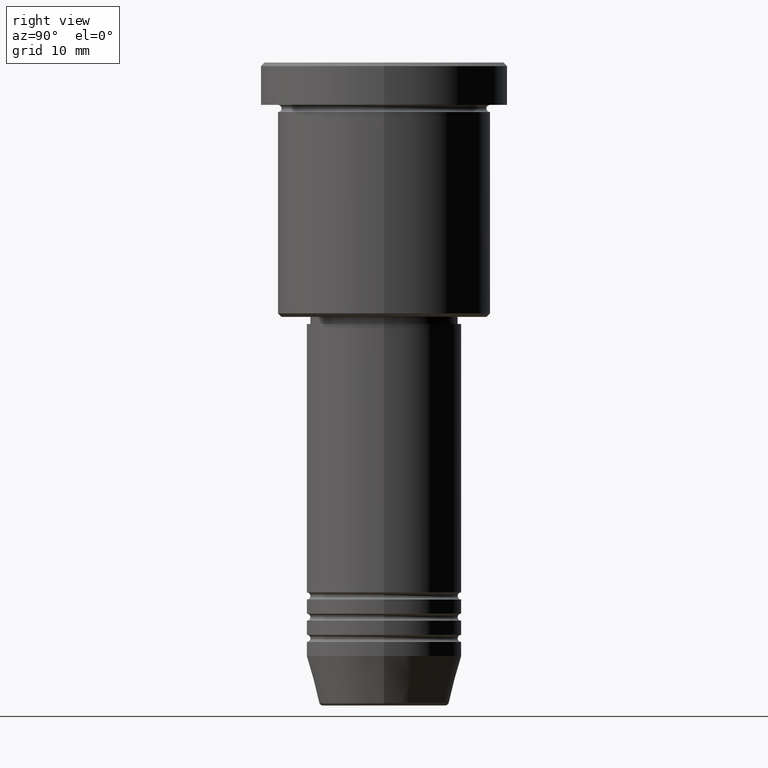
[diagram: clean part render]
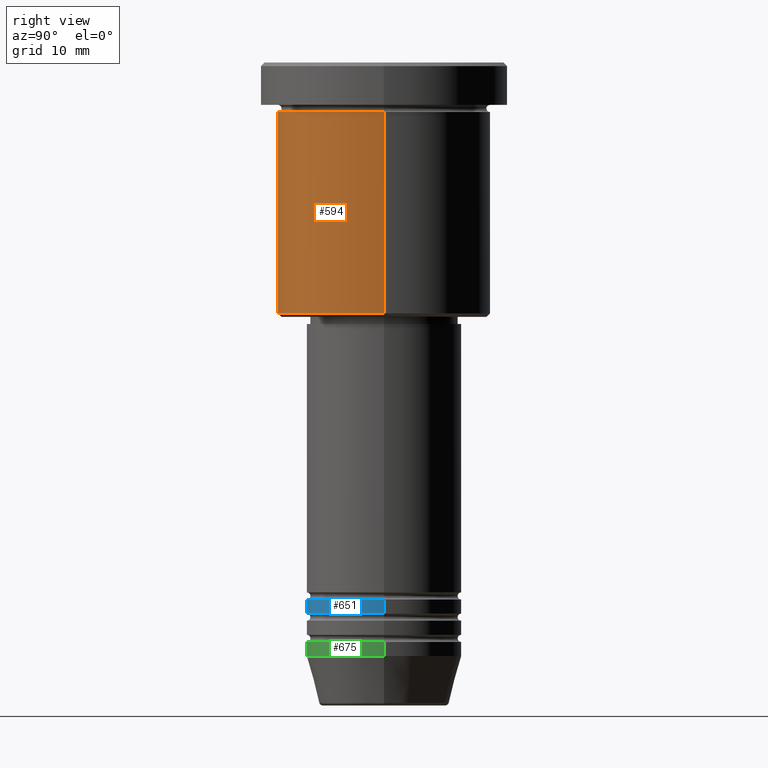
[diagram: same view with three faces highlighted in distinct colors, each labeled with its STEP entity id]
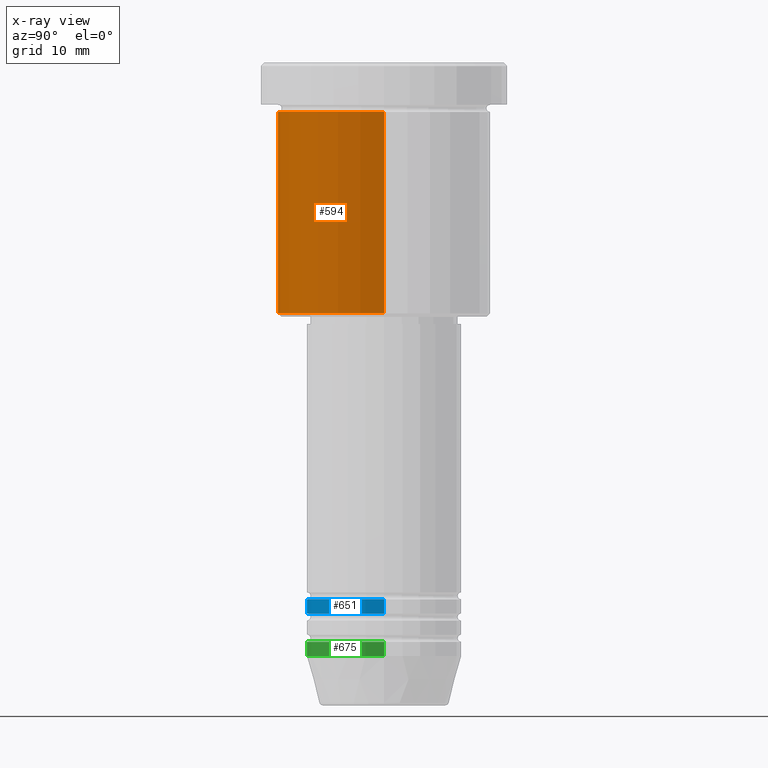
[diagram: x-ray of the same camera — body ghosted, the three highlighted faces saturated]
A machine part, right view with three faces highlighted in distinct colors.
The next image is the same camera in x-ray (body ghosted, the three faces saturated) — at least one of them is partly hidden behind the body in this view.
Their STEP definitions:

[orange] entity #594 — the highlighted cylindrical surface (partial cylindrical patch) has radius 15 mm, axis along (-0, -0, 1).
#3 = ORIENTED_EDGE ( 'NONE', *, *, #576, .T. ) ;
#48 = CARTESIAN_POINT ( 'NONE',  ( 0.000000000000000000, 0.000000000000000000, 0.000000000000000000 ) ) ;
#59 = VERTEX_POINT ( 'NONE', #326 ) ;
#89 = EDGE_CURVE ( 'NONE', #511, #591, #677, .T. ) ;
#100 = AXIS2_PLACEMENT_3D ( 'NONE', #236, #585, #1106 ) ;
#151 = LINE ( 'NONE', #889, #390 ) ;
#153 = ORIENTED_EDGE ( 'NONE', *, *, #995, .F. ) ;
#236 = CARTESIAN_POINT ( 'NONE',  ( 0.000000000000000000, 0.000000000000000000, -6.999999999999995559 ) ) ;
#242 = FACE_OUTER_BOUND ( 'NONE', #1086, .T. ) ;
#276 = EDGE_CURVE ( 'NONE', #59, #498, #447, .T. ) ;
#324 = DIRECTION ( 'NONE',  ( -0.000000000000000000, -0.000000000000000000, 1.000000000000000000 ) ) ;
#326 = CARTESIAN_POINT ( 'NONE',  ( -15.00000000000000000, 1.836970198721029589E-15, -35.49999999999999289 ) ) ;
#367 = DIRECTION ( 'NONE',  ( -1.000000000000000000, 0.000000000000000000, 0.000000000000000000 ) ) ;
#390 = VECTOR ( 'NONE', #324, 1000.000000000000000 ) ;
#394 = DIRECTION ( 'NONE',  ( -0.000000000000000000, -0.000000000000000000, 1.000000000000000000 ) ) ;
#441 = CARTESIAN_POINT ( 'NONE',  ( -15.00000000000000000, 1.836970198721029589E-15, 0.000000000000000000 ) ) ;
#447 = CIRCLE ( 'NONE', #481, 15.00000000000000000 ) ;
#457 = CARTESIAN_POINT ( 'NONE',  ( 0.000000000000000000, 0.000000000000000000, -35.49999999999999289 ) ) ;
#481 = AXIS2_PLACEMENT_3D ( 'NONE', #457, #645, #367 ) ;
#486 = ORIENTED_EDGE ( 'NONE', *, *, #276, .T. ) ;
#498 = VERTEX_POINT ( 'NONE', #978 ) ;
#511 = VERTEX_POINT ( 'NONE', #678 ) ;
#576 = EDGE_CURVE ( 'NONE', #498, #591, #151, .T. ) ;
#585 = DIRECTION ( 'NONE',  ( -0.000000000000000000, -0.000000000000000000, 1.000000000000000000 ) ) ;
#590 = CYLINDRICAL_SURFACE ( 'NONE', #1174, 15.00000000000000000 ) ;
#591 = VERTEX_POINT ( 'NONE', #756 ) ;
#594 = ADVANCED_FACE ( 'NONE', ( #242 ), #590, .T. ) ;
#613 = LINE ( 'NONE', #441, #781 ) ;
#645 = DIRECTION ( 'NONE',  ( -0.000000000000000000, -0.000000000000000000, 1.000000000000000000 ) ) ;
#677 = CIRCLE ( 'NONE', #100, 15.00000000000000000 ) ;
#678 = CARTESIAN_POINT ( 'NONE',  ( -15.00000000000000000, 1.836970198721029589E-15, -6.999999999999995559 ) ) ;
#756 = CARTESIAN_POINT ( 'NONE',  ( 15.00000000000000000, 0.000000000000000000, -6.999999999999995559 ) ) ;
#781 = VECTOR ( 'NONE', #827, 1000.000000000000000 ) ;
#827 = DIRECTION ( 'NONE',  ( -0.000000000000000000, -0.000000000000000000, 1.000000000000000000 ) ) ;
#889 = CARTESIAN_POINT ( 'NONE',  ( 15.00000000000000000, 0.000000000000000000, 0.000000000000000000 ) ) ;
#978 = CARTESIAN_POINT ( 'NONE',  ( 15.00000000000000000, 0.000000000000000000, -35.49999999999999289 ) ) ;
#995 = EDGE_CURVE ( 'NONE', #59, #511, #613, .T. ) ;
#1002 = ORIENTED_EDGE ( 'NONE', *, *, #89, .F. ) ;
#1086 = EDGE_LOOP ( 'NONE', ( #153, #486, #3, #1002 ) ) ;
#1106 = DIRECTION ( 'NONE',  ( 1.000000000000000000, 0.000000000000000000, 0.000000000000000000 ) ) ;
#1136 = DIRECTION ( 'NONE',  ( 1.000000000000000000, 0.000000000000000000, 0.000000000000000000 ) ) ;
#1174 = AXIS2_PLACEMENT_3D ( 'NONE', #48, #394, #1136 ) ;

[blue] entity #651 — the highlighted cylindrical surface (partial cylindrical patch) has radius 11 mm, axis along (-0, -0, 1).
#7 = LINE ( 'NONE', #723, #848 ) ;
#88 = EDGE_CURVE ( 'NONE', #364, #474, #505, .T. ) ;
#118 = AXIS2_PLACEMENT_3D ( 'NONE', #653, #332, #964 ) ;
#192 = EDGE_CURVE ( 'NONE', #578, #474, #274, .T. ) ;
#274 = LINE ( 'NONE', #630, #1018 ) ;
#317 = DIRECTION ( 'NONE',  ( -0.000000000000000000, -0.000000000000000000, 1.000000000000000000 ) ) ;
#325 = ORIENTED_EDGE ( 'NONE', *, *, #88, .F. ) ;
#329 = CARTESIAN_POINT ( 'NONE',  ( -11.00000000000000000, 1.347111479062088405E-15, -77.99999999999997158 ) ) ;
#332 = DIRECTION ( 'NONE',  ( -0.000000000000000000, -0.000000000000000000, 1.000000000000000000 ) ) ;
#342 = CYLINDRICAL_SURFACE ( 'NONE', #623, 11.00000000000000000 ) ;
#351 = DIRECTION ( 'NONE',  ( 1.000000000000000000, 0.000000000000000000, 0.000000000000000000 ) ) ;
#364 = VERTEX_POINT ( 'NONE', #470 ) ;
#425 = AXIS2_PLACEMENT_3D ( 'NONE', #773, #317, #681 ) ;
#470 = CARTESIAN_POINT ( 'NONE',  ( -11.00000000000000000, 1.347111479062088405E-15, -75.99999999999997158 ) ) ;
#474 = VERTEX_POINT ( 'NONE', #884 ) ;
#505 = CIRCLE ( 'NONE', #425, 11.00000000000000000 ) ;
#578 = VERTEX_POINT ( 'NONE', #688 ) ;
#608 = CARTESIAN_POINT ( 'NONE',  ( 0.000000000000000000, 0.000000000000000000, 0.000000000000000000 ) ) ;
#623 = AXIS2_PLACEMENT_3D ( 'NONE', #608, #1075, #351 ) ;
#627 = VERTEX_POINT ( 'NONE', #329 ) ;
#630 = CARTESIAN_POINT ( 'NONE',  ( 11.00000000000000000, 0.000000000000000000, 0.000000000000000000 ) ) ;
#651 = ADVANCED_FACE ( 'NONE', ( #1096 ), #342, .T. ) ;
#653 = CARTESIAN_POINT ( 'NONE',  ( 0.000000000000000000, 0.000000000000000000, -77.99999999999997158 ) ) ;
#681 = DIRECTION ( 'NONE',  ( 1.000000000000000000, 0.000000000000000000, 0.000000000000000000 ) ) ;
#688 = CARTESIAN_POINT ( 'NONE',  ( 11.00000000000000000, 0.000000000000000000, -77.99999999999997158 ) ) ;
#711 = EDGE_CURVE ( 'NONE', #627, #364, #7, .T. ) ;
#723 = CARTESIAN_POINT ( 'NONE',  ( -11.00000000000000000, 1.347111479062088405E-15, 0.000000000000000000 ) ) ;
#773 = CARTESIAN_POINT ( 'NONE',  ( 0.000000000000000000, 0.000000000000000000, -75.99999999999997158 ) ) ;
#848 = VECTOR ( 'NONE', #1104, 1000.000000000000000 ) ;
#884 = CARTESIAN_POINT ( 'NONE',  ( 11.00000000000000000, 0.000000000000000000, -75.99999999999997158 ) ) ;
#937 = EDGE_CURVE ( 'NONE', #627, #578, #1081, .T. ) ;
#964 = DIRECTION ( 'NONE',  ( 1.000000000000000000, 0.000000000000000000, 0.000000000000000000 ) ) ;
#1012 = DIRECTION ( 'NONE',  ( -0.000000000000000000, -0.000000000000000000, 1.000000000000000000 ) ) ;
#1018 = VECTOR ( 'NONE', #1012, 1000.000000000000000 ) ;
#1062 = ORIENTED_EDGE ( 'NONE', *, *, #711, .F. ) ;
#1075 = DIRECTION ( 'NONE',  ( -0.000000000000000000, -0.000000000000000000, 1.000000000000000000 ) ) ;
#1081 = CIRCLE ( 'NONE', #118, 11.00000000000000000 ) ;
#1089 = EDGE_LOOP ( 'NONE', ( #1062, #1161, #1126, #325 ) ) ;
#1096 = FACE_OUTER_BOUND ( 'NONE', #1089, .T. ) ;
#1104 = DIRECTION ( 'NONE',  ( -0.000000000000000000, -0.000000000000000000, 1.000000000000000000 ) ) ;
#1126 = ORIENTED_EDGE ( 'NONE', *, *, #192, .T. ) ;
#1161 = ORIENTED_EDGE ( 'NONE', *, *, #937, .T. ) ;

[green] entity #675 — the highlighted cylindrical surface (partial cylindrical patch) has radius 11 mm, axis along (-0, -0, 1).
#1 = DIRECTION ( 'NONE',  ( 1.000000000000000000, 0.000000000000000000, 0.000000000000000000 ) ) ;
#22 = EDGE_CURVE ( 'NONE', #618, #920, #44, .T. ) ;
#44 = CIRCLE ( 'NONE', #297, 11.00000000000000000 ) ;
#52 = ORIENTED_EDGE ( 'NONE', *, *, #493, .T. ) ;
#90 = CYLINDRICAL_SURFACE ( 'NONE', #1056, 11.00000000000000000 ) ;
#95 = CARTESIAN_POINT ( 'NONE',  ( 0.000000000000000000, 0.000000000000000000, 0.000000000000000000 ) ) ;
#119 = EDGE_CURVE ( 'NONE', #502, #398, #245, .T. ) ;
#163 = FACE_OUTER_BOUND ( 'NONE', #339, .T. ) ;
#184 = ORIENTED_EDGE ( 'NONE', *, *, #22, .T. ) ;
#191 = CARTESIAN_POINT ( 'NONE',  ( 0.000000000000000000, 0.000000000000000000, -81.99999999999998579 ) ) ;
#245 = CIRCLE ( 'NONE', #573, 11.00000000000000000 ) ;
#278 = DIRECTION ( 'NONE',  ( -0.000000000000000000, -0.000000000000000000, 1.000000000000000000 ) ) ;
#283 = LINE ( 'NONE', #635, #868 ) ;
#297 = AXIS2_PLACEMENT_3D ( 'NONE', #305, #1067, #892 ) ;
#305 = CARTESIAN_POINT ( 'NONE',  ( 0.000000000000000000, 0.000000000000000000, -83.99999999999998579 ) ) ;
#312 = ORIENTED_EDGE ( 'NONE', *, *, #421, .F. ) ;
#339 = EDGE_LOOP ( 'NONE', ( #312, #184, #52, #1168 ) ) ;
#398 = VERTEX_POINT ( 'NONE', #542 ) ;
#421 = EDGE_CURVE ( 'NONE', #618, #502, #283, .T. ) ;
#493 = EDGE_CURVE ( 'NONE', #920, #398, #495, .T. ) ;
#495 = LINE ( 'NONE', #776, #911 ) ;
#502 = VERTEX_POINT ( 'NONE', #684 ) ;
#542 = CARTESIAN_POINT ( 'NONE',  ( 11.00000000000000000, 0.000000000000000000, -81.99999999999998579 ) ) ;
#573 = AXIS2_PLACEMENT_3D ( 'NONE', #191, #800, #706 ) ;
#618 = VERTEX_POINT ( 'NONE', #997 ) ;
#635 = CARTESIAN_POINT ( 'NONE',  ( -11.00000000000000000, 1.347111479062088405E-15, 0.000000000000000000 ) ) ;
#675 = ADVANCED_FACE ( 'NONE', ( #163 ), #90, .T. ) ;
#684 = CARTESIAN_POINT ( 'NONE',  ( -11.00000000000000000, 1.347111479062088405E-15, -81.99999999999998579 ) ) ;
#706 = DIRECTION ( 'NONE',  ( 1.000000000000000000, 0.000000000000000000, 0.000000000000000000 ) ) ;
#776 = CARTESIAN_POINT ( 'NONE',  ( 11.00000000000000000, 0.000000000000000000, 0.000000000000000000 ) ) ;
#800 = DIRECTION ( 'NONE',  ( -0.000000000000000000, -0.000000000000000000, 1.000000000000000000 ) ) ;
#868 = VECTOR ( 'NONE', #278, 1000.000000000000000 ) ;
#892 = DIRECTION ( 'NONE',  ( 1.000000000000000000, 0.000000000000000000, 0.000000000000000000 ) ) ;
#911 = VECTOR ( 'NONE', #1158, 1000.000000000000000 ) ;
#920 = VERTEX_POINT ( 'NONE', #1171 ) ;
#997 = CARTESIAN_POINT ( 'NONE',  ( -11.00000000000000000, 1.347111479062088405E-15, -83.99999999999998579 ) ) ;
#1056 = AXIS2_PLACEMENT_3D ( 'NONE', #95, #1085, #1 ) ;
#1067 = DIRECTION ( 'NONE',  ( -0.000000000000000000, -0.000000000000000000, 1.000000000000000000 ) ) ;
#1085 = DIRECTION ( 'NONE',  ( -0.000000000000000000, -0.000000000000000000, 1.000000000000000000 ) ) ;
#1158 = DIRECTION ( 'NONE',  ( -0.000000000000000000, -0.000000000000000000, 1.000000000000000000 ) ) ;
#1168 = ORIENTED_EDGE ( 'NONE', *, *, #119, .F. ) ;
#1171 = CARTESIAN_POINT ( 'NONE',  ( 11.00000000000000000, 0.000000000000000000, -83.99999999999998579 ) ) ;